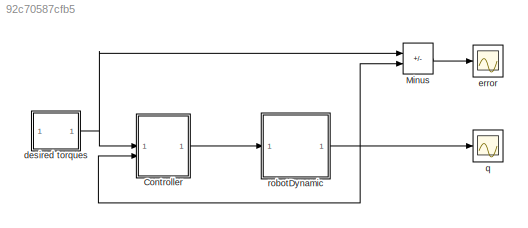
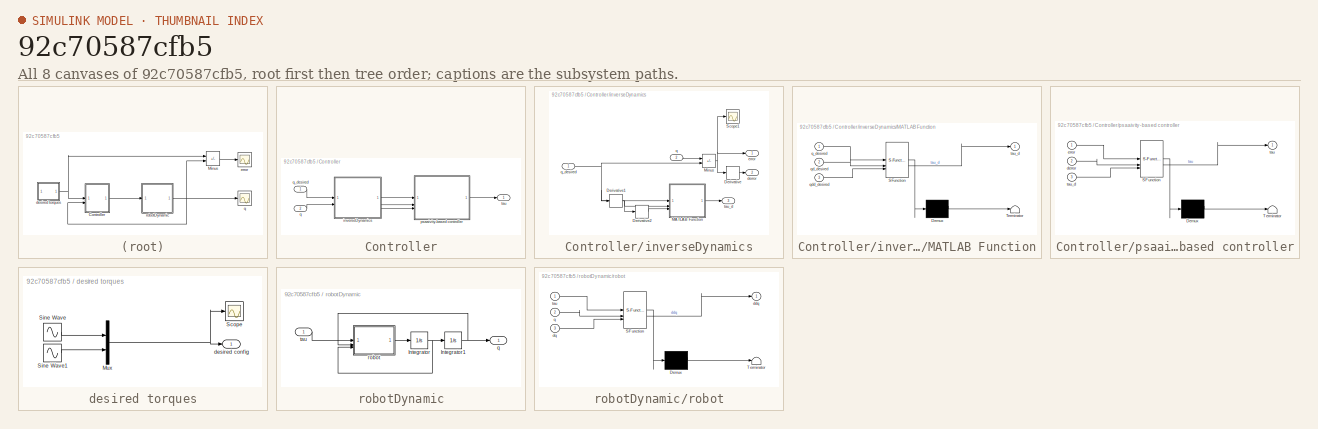
[diagram: thumbnail index - all 8 canvases of the model, root first then tree order]
MODEL slx_92c70587cfb5
KIND model
CONFIG AbsTol = auto
CONFIG EnableMultiTasking = off
CONFIG FixedStep = 0.01
CONFIG MaxStep = auto
CONFIG MinStep = auto
CONFIG RelTol = 1e-3
CONFIG SampleTimeConstraint = Unconstrained
CONFIG SolverName = ode1
CONFIG StartTime = 0.0
CONFIG StopTime = 10
BLOCK [SubSystem] Controller
BLOCK [SubSystem] Controller/inverseDynamics
BLOCK [Derivative] Controller/inverseDynamics/Derivative
BLOCK [Derivative] Controller/inverseDynamics/Derivative1
BLOCK [Derivative] Controller/inverseDynamics/Derivative2
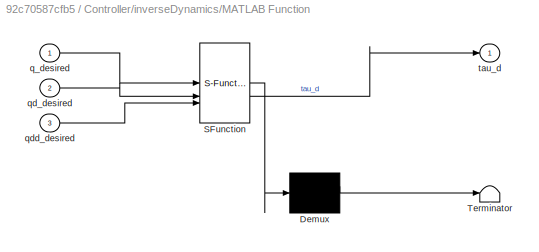
BLOCK [SubSystem] Controller/inverseDynamics/MATLAB Function
  ErrorFcn = Stateflow.Translate.translate
  PermitHierarchicalResolution = ExplicitOnly
  SFBlockType = MATLAB Function
  TreatAsAtomicUnit = on
BLOCK [Demux] Controller/inverseDynamics/MATLAB Function/ Demux 
  Outputs = 1
BLOCK [S-Function] Controller/inverseDynamics/MATLAB Function/ SFunction 
  EnableBusSupport = on
  FunctionName = sf_sfun
  PortCounts = [3 2]
  SFcnIsStateOwnerBlock = off
  SFunctionDeploymentMode = off
  Tag = Stateflow S-Function 3
BLOCK [Terminator] Controller/inverseDynamics/MATLAB Function/ Terminator 
BLOCK [Inport] Controller/inverseDynamics/MATLAB Function/q_desired
BLOCK [Inport] Controller/inverseDynamics/MATLAB Function/qd_desired
  Port = 2
BLOCK [Inport] Controller/inverseDynamics/MATLAB Function/qdd_desired
  Port = 3
BLOCK [Outport] Controller/inverseDynamics/MATLAB Function/tau_d
BLOCK [Sum] Controller/inverseDynamics/Minus
  IconShape = rectangular
  Inputs = -+
BLOCK [Scope] Controller/inverseDynamics/Scope1
  Floating = off
  NumInputPorts = 1
  ScopeSpecificationString = Simulink.scopes.TimeScopeBlockCfg('CurrentConfiguration', extmgr.ConfigurationSet(extmgr.Configuration('Core','General UI',true),extmgr.Configuration('Core','Source UI',true),extmgr.Configuration('Sources','WiredSimulink',true,'DataLoggingVariableName','ScopeData1'),extmgr.Configuration('Visuals','Time Domain',true,'SerializedDisplays',{struct('MinYLimReal','-0.25397','MaxYLimReal','1.78466','YLab...<+1465ch>
BLOCK [Outport] Controller/inverseDynamics/derror
  Port = 2
BLOCK [Outport] Controller/inverseDynamics/error
BLOCK [Inport] Controller/inverseDynamics/q
  Port = 2
BLOCK [Inport] Controller/inverseDynamics/q_desired
BLOCK [Outport] Controller/inverseDynamics/tau_d
  Port = 3
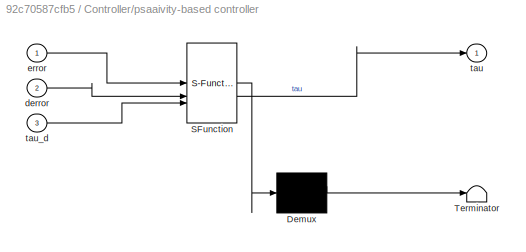
BLOCK [SubSystem] Controller/psaaivity-based controller
  ErrorFcn = Stateflow.Translate.translate
  PermitHierarchicalResolution = ExplicitOnly
  SFBlockType = MATLAB Function
  TreatAsAtomicUnit = on
BLOCK [Demux] Controller/psaaivity-based controller/ Demux 
  Outputs = 1
BLOCK [S-Function] Controller/psaaivity-based controller/ SFunction 
  EnableBusSupport = on
  FunctionName = sf_sfun
  PortCounts = [3 2]
  SFcnIsStateOwnerBlock = off
  SFunctionDeploymentMode = off
  Tag = Stateflow S-Function 2
BLOCK [Terminator] Controller/psaaivity-based controller/ Terminator 
BLOCK [Inport] Controller/psaaivity-based controller/derror
  Port = 2
BLOCK [Inport] Controller/psaaivity-based controller/error
BLOCK [Outport] Controller/psaaivity-based controller/tau
BLOCK [Inport] Controller/psaaivity-based controller/tau_d
  Port = 3
BLOCK [Inport] Controller/q
  Port = 2
BLOCK [Inport] Controller/q_desired
BLOCK [Outport] Controller/tau
BLOCK [Sum] Minus
  IconShape = rectangular
  Inputs = +-
BLOCK [SubSystem] desired torques
BLOCK [Mux] desired torques/Mux
  DisplayOption = bar
  Inputs = 2
BLOCK [Scope] desired torques/Scope
  Floating = off
  NumInputPorts = 1
  ScopeSpecificationString = Simulink.scopes.TimeScopeBlockCfg('CurrentConfiguration', extmgr.ConfigurationSet(extmgr.Configuration('Core','General UI',true),extmgr.Configuration('Core','Source UI',true),extmgr.Configuration('Sources','WiredSimulink',true,'DataLoggingVariableName','ScopeData1'),extmgr.Configuration('Visuals','Time Domain',true,'SerializedDisplays',{struct('MinYLimReal','-0.19635','MaxYLimReal','1.76715','YLab...<+1491ch>
BLOCK [Sin] desired torques/Sine Wave
  Amplitude = 0.2
  SampleTime = 0
BLOCK [Sin] desired torques/Sine Wave1
  Amplitude = 0.2
  Phase = pi/2
  SampleTime = 0
BLOCK [Outport] desired torques/desired config
BLOCK [Scope] error
  Floating = off
  NumInputPorts = 1
  ScopeSpecificationString = Simulink.scopes.TimeScopeBlockCfg('CurrentConfiguration', extmgr.ConfigurationSet(extmgr.Configuration('Core','General UI',true),extmgr.Configuration('Core','Source UI',true),extmgr.Configuration('Sources','WiredSimulink',true,'DataLoggingVariableName','ScopeData1'),extmgr.Configuration('Visuals','Time Domain',true,'SerializedDisplays',{struct('MinYLimReal','-0.03184','MaxYLimReal','0.22576','YLab...<+1465ch>
BLOCK [Scope] q
  Floating = off
  NumInputPorts = 1
  ScopeSpecificationString = Simulink.scopes.TimeScopeBlockCfg('CurrentConfiguration', extmgr.ConfigurationSet(extmgr.Configuration('Core','General UI',true),extmgr.Configuration('Core','Source UI',true),extmgr.Configuration('Sources','WiredSimulink',true),extmgr.Configuration('Visuals','Time Domain',true,'SerializedDisplays',{struct('MinYLimReal','-0.25','MaxYLimReal','0.25','YLabelReal','','MinYLimMag','0.00000','MaxYLimMag...<+1451ch>
BLOCK [SubSystem] robotDynamic
BLOCK [Integrator] robotDynamic/Integrator
BLOCK [Integrator] robotDynamic/Integrator1
BLOCK [Outport] robotDynamic/q
BLOCK [SubSystem] robotDynamic/robot
  ErrorFcn = Stateflow.Translate.translate
  PermitHierarchicalResolution = ExplicitOnly
  SFBlockType = MATLAB Function
  TreatAsAtomicUnit = on
BLOCK [Demux] robotDynamic/robot/ Demux 
  Outputs = 1
BLOCK [S-Function] robotDynamic/robot/ SFunction 
  EnableBusSupport = on
  FunctionName = sf_sfun
  PortCounts = [3 2]
  SFcnIsStateOwnerBlock = off
  SFunctionDeploymentMode = off
  Tag = Stateflow S-Function 1
BLOCK [Terminator] robotDynamic/robot/ Terminator 
BLOCK [Outport] robotDynamic/robot/ddq
BLOCK [Inport] robotDynamic/robot/dq
  Port = 3
BLOCK [Inport] robotDynamic/robot/q
  Port = 2
BLOCK [Inport] robotDynamic/robot/tau
BLOCK [Inport] robotDynamic/tau
NET Controller/inverseDynamics/Derivative1:1 -> Controller/inverseDynamics/Derivative2:1, Controller/inverseDynamics/MATLAB Function:2
LINE Controller/inverseDynamics/Derivative2:1 -> Controller/inverseDynamics/MATLAB Function:3
LINE Controller/inverseDynamics/Derivative:1 -> Controller/inverseDynamics/derror:1
LINE Controller/inverseDynamics/MATLAB Function:1 -> Controller/inverseDynamics/tau_d:1
NET Controller/inverseDynamics/Minus:1 -> Controller/inverseDynamics/Derivative:1, Controller/inverseDynamics/Scope1:1, Controller/inverseDynamics/error:1
LINE Controller/inverseDynamics/q:1 -> Controller/inverseDynamics/Minus:1
NET Controller/inverseDynamics/q_desired:1 -> Controller/inverseDynamics/Derivative1:1, Controller/inverseDynamics/MATLAB Function:1, Controller/inverseDynamics/Minus:2
LINE Controller/inverseDynamics:1 -> Controller/psaaivity-based controller:1
LINE Controller/inverseDynamics:2 -> Controller/psaaivity-based controller:2
LINE Controller/inverseDynamics:3 -> Controller/psaaivity-based controller:3
LINE Controller/psaaivity-based controller:1 -> Controller/tau:1
LINE Controller/q:1 -> Controller/inverseDynamics:2
LINE Controller/q_desired:1 -> Controller/inverseDynamics:1
LINE Controller:1 -> robotDynamic:1
LINE Minus:1 -> error:1
NET desired torques/Mux:1 -> desired torques/Scope:1, desired torques/desired config:1
LINE desired torques/Sine Wave1:1 -> desired torques/Mux:2
LINE desired torques/Sine Wave:1 -> desired torques/Mux:1
NET desired torques:1 -> Controller:1, Minus:1
NET robotDynamic/Integrator1:1 -> robotDynamic/q:1, robotDynamic/robot:2
NET robotDynamic/Integrator:1 -> robotDynamic/Integrator1:1, robotDynamic/robot:3
LINE robotDynamic/robot:1 -> robotDynamic/Integrator:1
LINE robotDynamic/tau:1 -> robotDynamic/robot:1
NET robotDynamic:1 -> Controller:2, Minus:2, q:1
note: NET lines group one-source signal fan-out (src -> all destinations, sorted); 1:1 wires keep LINE
CHART robotDynamic/robot states=1 transitions=1
  STATE_LABEL 'eML_blk_kernel()'
  STATE_LABEL 'SCRIPT:\nfunction ddq = robot(tau, q, dq)\n\nI1 = 0.05;\nm1 = 1.5;\nlg1 = 0.2;\nlr1 = lg1 / 2;\n\nI2 = 0.01;\nm2 = 0.5;\nlg2 = 0.2;\nlr2 = lg2 / 2;\n\ng = 9.8;\n\nM = [m1 * lr1^2 + I1 + m2 * lg1^2, m2 * lg1 * lr2 * cos(q(2));\n        m2 * lg1 * lr2 * cos(q(2)), m2 * lr2^2 + I2];\n\nV = [-m2 * lg1 * lr2 * dq(2)^2 * sin(q(2));\n    m2 * lg1 * lr2 * dq(1)^2 * sin(q(2))];\n\nG = [m1 * g * lr1 * cos(q(1)) + m2 * g * lg1 *...<+82ch>'
CHART Controller/psaaivity-based controller states=1 transitions=1
  STATE_LABEL 'eML_blk_kernel()'
  STATE_LABEL 'SCRIPT:\nfunction tau = controller(error, derror, tau_d)\n\nkp = [10, 0;\n       0, 10];\n\n\nkd = [1, 0;\n        0, 1];\n\ntau = kp * error + kd * derror + tau_d;'
CHART Controller/inverseDynamics/MATLAB Function states=1 transitions=1
  STATE_LABEL 'eML_blk_kernel()'
  STATE_LABEL 'SCRIPT:\nfunction tau_d = dynamics(q_desired, qd_desired, qdd_desired)\n\nI1 = 0.05;\nm1 = 1.5;\nlg1 = 0.2;\nlr1 = lg1 / 2;\n\nI2 = 0.01;\nm2 = 0.5;\nlg2 = 0.2;\nlr2 = lg2 / 2;\n\ng = 9.8;\n\nM = [m1 * lr1^2 + I1 + m2 * lg1^2, m2 * lg1 * lr2 * cos(q_desired(2));\n        m2 * lg1 * lr2 * cos(q_desired(2)), m2 * lr2^2 + I2];\n\nV = [-m2 * lg1 * lr2 * qd_desired(2)^2 * sin(q_desired(2));\n    m2 * lg1 * lr2 * qd_desir...<+198ch>'
CHART  states=0 transitions=0
CHART  states=0 transitions=0
CHART  states=0 transitions=0
